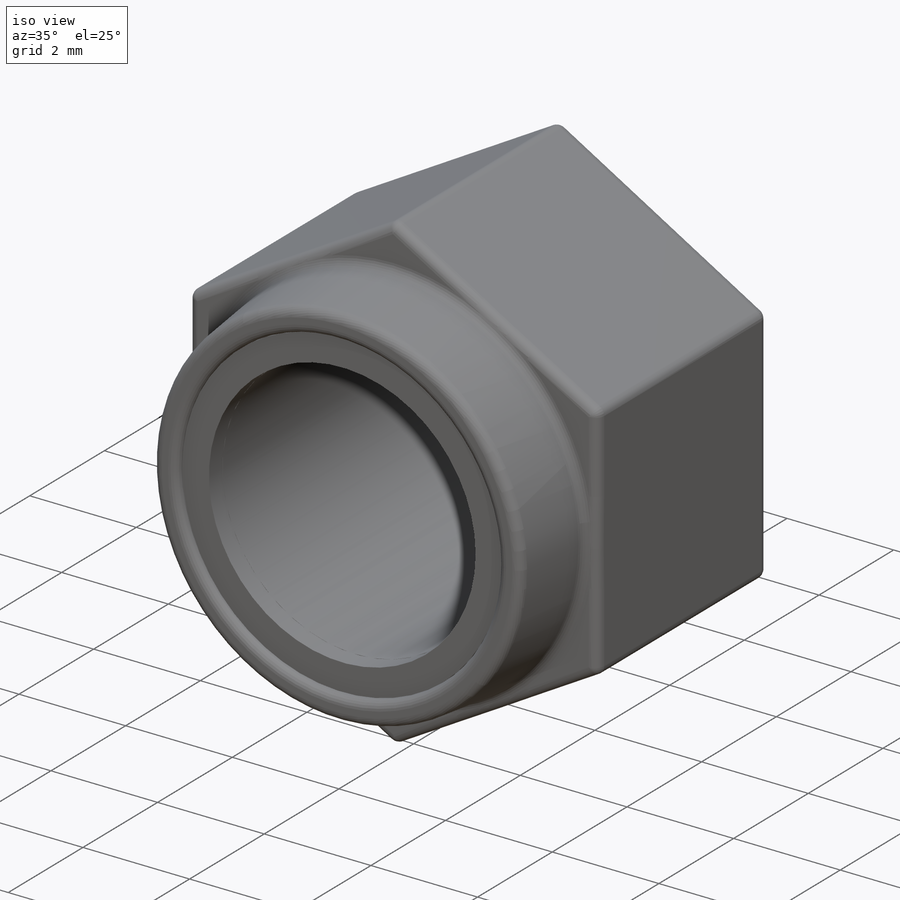
[diagram: iso view]
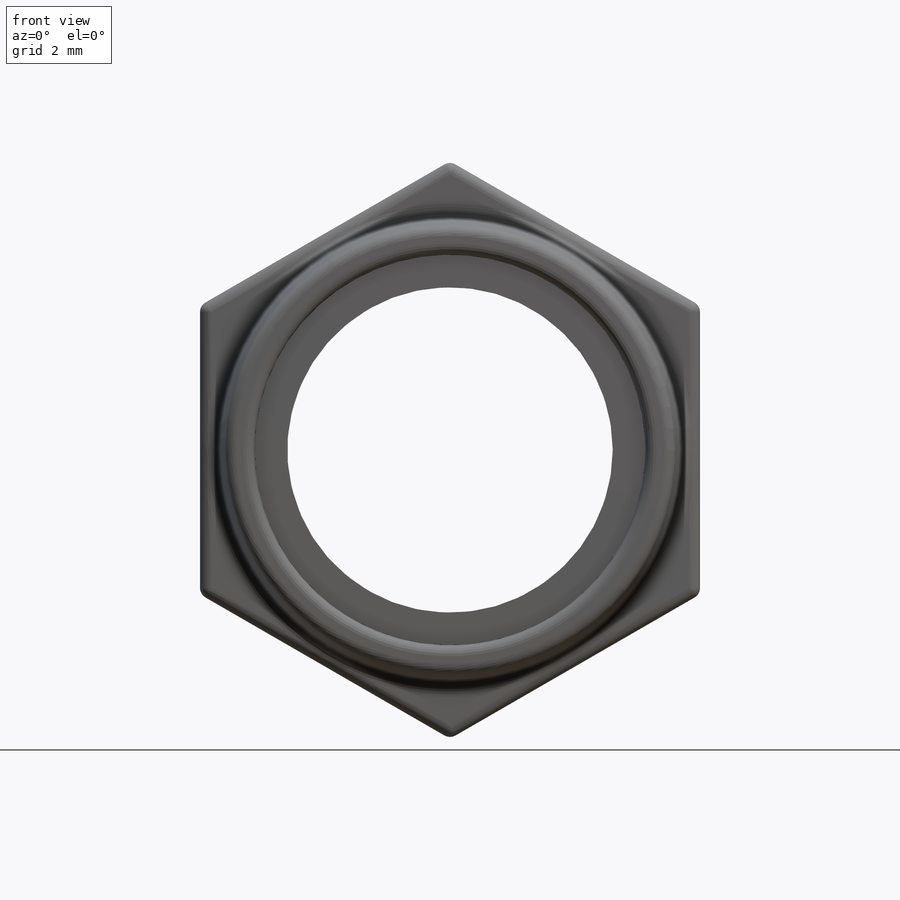
[diagram: front view]
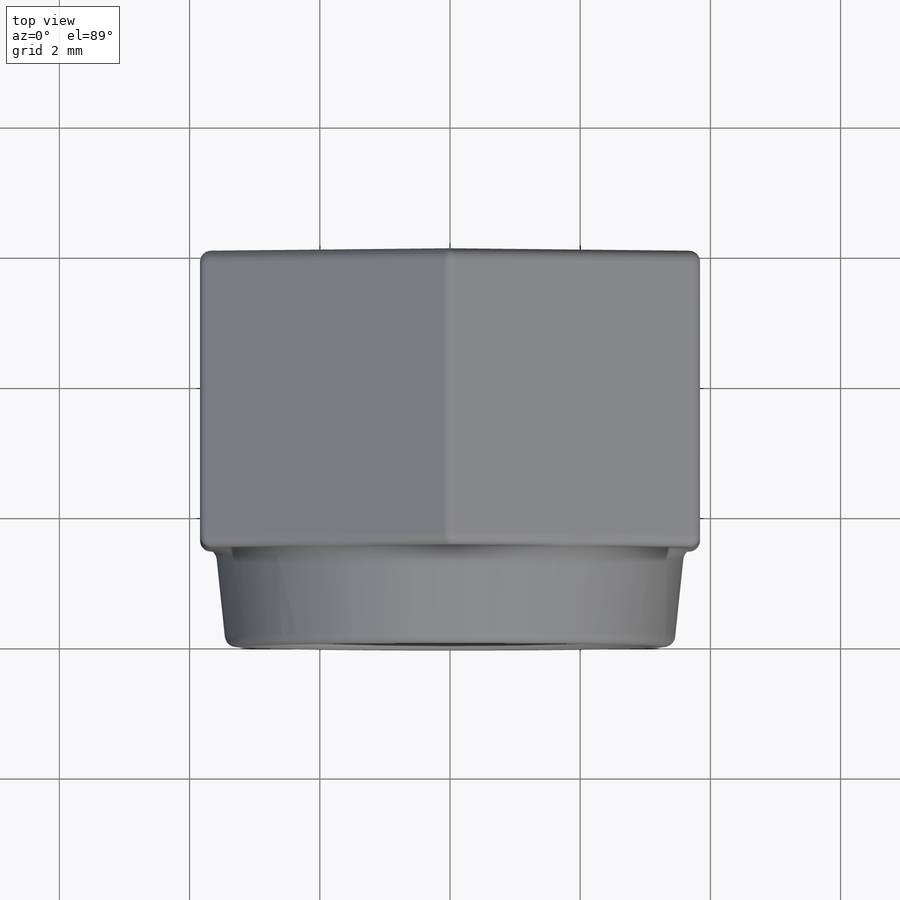
[diagram: top view]
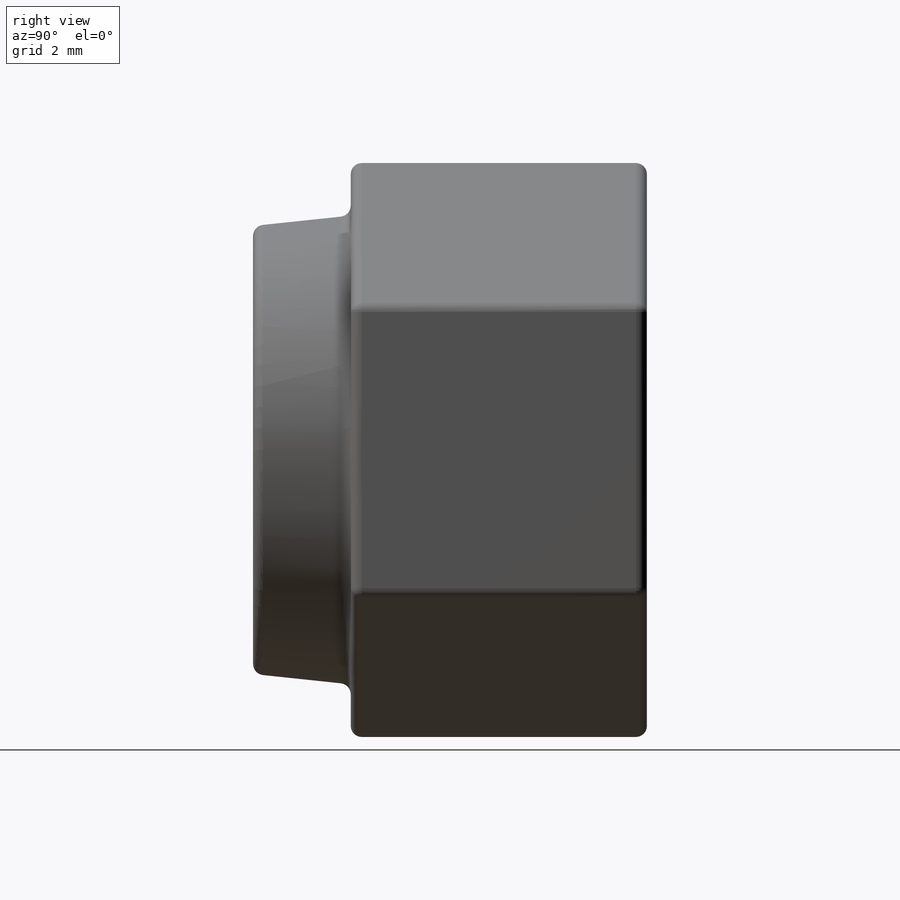
[diagram: right view]
SOLIDWORKS PART (.sldprt)
format: sldprt  version: not decoded by parser v0  size: 394,752 bytes
history: native  units: mm
features: sketch x7, fillet x4, extrude x3, cut_extrude x3, material x1, plane x1 (+13 scaffold rows collapsed)
feature tree (32):
  scaffold x13  (default folders/planes/origin — collapsed)
  material  "Material <sin especificar>"
  sketch  "Sketch1"  dims[D1=8.87mm]
  extrude  "Boss-Extrude1"  Depth=3mm
  sketch  "Sketch2"  dims[D1=7.2mm]
  extrude  "Boss-Extrude2"  Depth=1.5mm
  sketch  "Sketch3"  dims[D1=5.0mm]
  cut_extrude  "Cut-Extrude1"  [1 undecoded]
  sketch  "Sketch4"  dims[D1=0.5mm]
  cut_extrude  "Cut-Extrude2"  Depth=0.5mm
  fillet  "Fillet2"  Radius=0.17mm
  fillet  "Fillet3"  Radius=0.17mm
  sketch  "Sketch5"  dims[D1=0.0mm]
  plane  "Plane1"  Offset=6.53mm
  sketch  "Sketch6"
  extrude  "Boss-Extrude4"  Depth=0.36mm
  sketch  "Sketch8"  dims[D1=0.0mm]
  cut_extrude  "Cut-Extrude3"  Depth=0.36mm
  fillet  "Fillet4"  Radius=0.17mm
  fillet  "Fillet5"  Radius=0.17mm
decode coverage: 15 of 17 modeling features carry decoded parameters
note: 1 parameter value undecoded
note: suppression state not decoded; provenance and decode notes live in map.json
